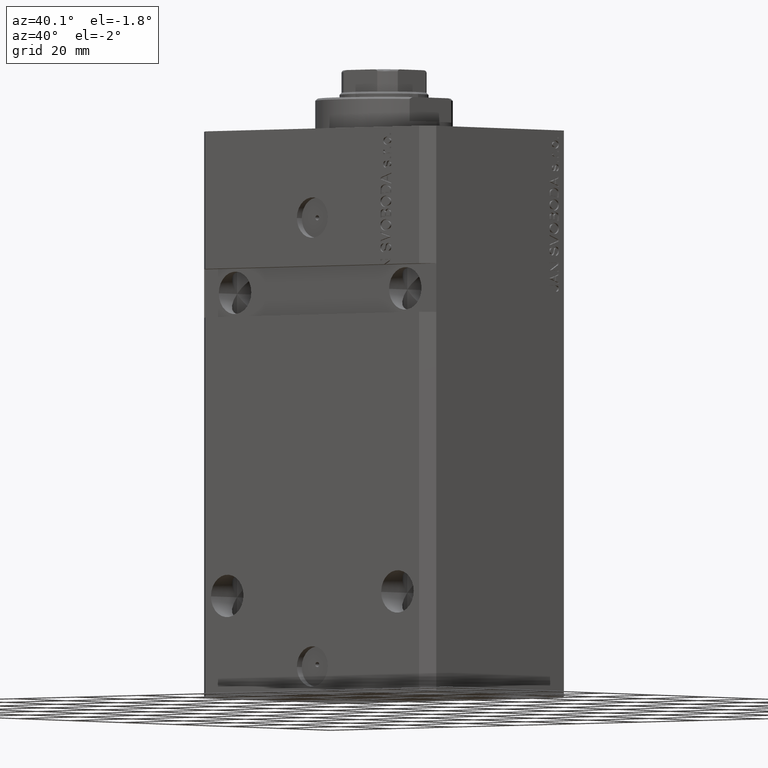
[diagram: clean part render]
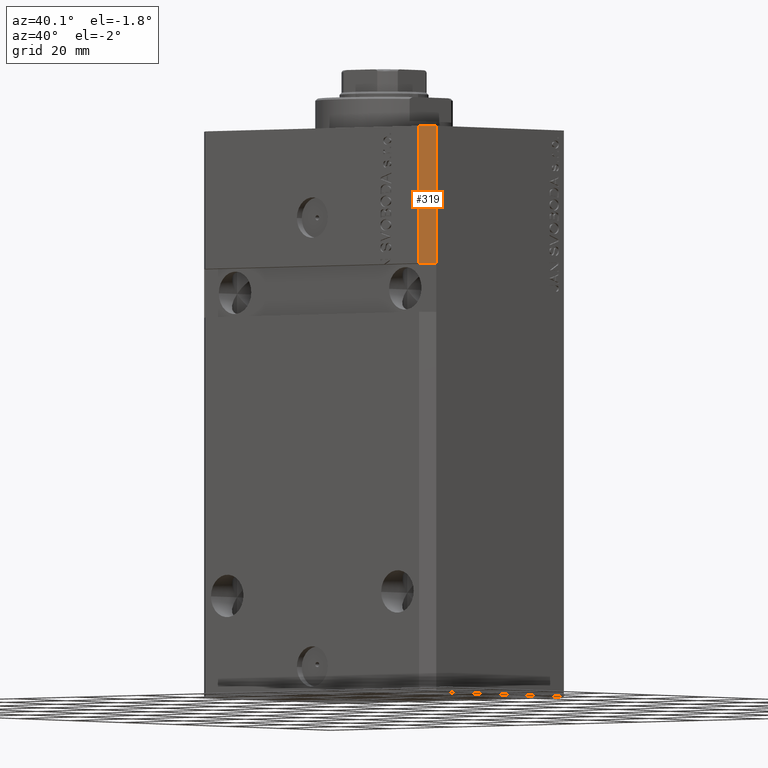
[diagram: same view with one face highlighted and labeled with its STEP entity id]
A machine part, auxiliary view. The second image highlights one B-rep face of the part: STEP entity #319.
In plain terms, the highlighted planar face has unit normal (0.7071, -0.7071, 0).
Its self-contained STEP definition (entity closure, byte-faithful):
#8 = LINE ( 'NONE', #26638, #39575 ) ;
#319 = ADVANCED_FACE ( 'NONE', ( #12850 ), #4960, .T. ) ;
#3857 = ORIENTED_EDGE ( 'NONE', *, *, #31316, .F. ) ;
#4960 = PLANE ( 'NONE',  #11954 ) ;
#5995 = VECTOR ( 'NONE', #27518, 1000.000000000000114 ) ;
#8615 = CARTESIAN_POINT ( 'NONE',  ( 34.49999999999999289, -27.49999999999999645, -140.0000000000000000 ) ) ;
#11954 = AXIS2_PLACEMENT_3D ( 'NONE', #22343, #43084, #15335 ) ;
#12850 = FACE_OUTER_BOUND ( 'NONE', #25553, .T. ) ;
#13306 = EDGE_CURVE ( 'NONE', #39475, #34709, #8, .T. ) ;
#13749 = LINE ( 'NONE', #34044, #5995 ) ;
#15164 = DIRECTION ( 'NONE',  ( 0.000000000000000000, 0.000000000000000000, 1.000000000000000000 ) ) ;
#15335 = DIRECTION ( 'NONE',  ( 0.7071067811865474617, 0.7071067811865474617, 0.000000000000000000 ) ) ;
#15405 = LINE ( 'NONE', #42933, #40997 ) ;
#15474 = EDGE_CURVE ( 'NONE', #39475, #39930, #15405, .T. ) ;
#20330 = CARTESIAN_POINT ( 'NONE',  ( 37.49999999999999289, -24.49999999999999289, -33.99999999999999289 ) ) ;
#20380 = VECTOR ( 'NONE', #15164, 1000.000000000000000 ) ;
#20541 = DIRECTION ( 'NONE',  ( 0.000000000000000000, 0.000000000000000000, 1.000000000000000000 ) ) ;
#22343 = CARTESIAN_POINT ( 'NONE',  ( 34.49999999999999289, -27.49999999999999645, -140.0000000000000000 ) ) ;
#22420 = DIRECTION ( 'NONE',  ( -0.7071067811865474617, -0.7071067811865474617, -6.542051911182397555E-17 ) ) ;
#25123 = LINE ( 'NONE', #8615, #20380 ) ;
#25553 = EDGE_LOOP ( 'NONE', ( #30127, #28182, #3857, #28694 ) ) ;
#26535 = EDGE_CURVE ( 'NONE', #39930, #40955, #25123, .T. ) ;
#26638 = CARTESIAN_POINT ( 'NONE',  ( 37.49999999999999289, -24.50000000000000000, -140.0000000000000000 ) ) ;
#27518 = DIRECTION ( 'NONE',  ( 0.7071067811865474617, 0.7071067811865474617, 0.000000000000000000 ) ) ;
#28182 = ORIENTED_EDGE ( 'NONE', *, *, #13306, .T. ) ;
#28333 = CARTESIAN_POINT ( 'NONE',  ( 34.49999999999999289, -27.49999999999999645, 0.000000000000000000 ) ) ;
#28694 = ORIENTED_EDGE ( 'NONE', *, *, #26535, .F. ) ;
#30127 = ORIENTED_EDGE ( 'NONE', *, *, #15474, .F. ) ;
#31316 = EDGE_CURVE ( 'NONE', #40955, #34709, #13749, .T. ) ;
#34044 = CARTESIAN_POINT ( 'NONE',  ( 34.49999999999999289, -27.49999999999999645, 0.000000000000000000 ) ) ;
#34709 = VERTEX_POINT ( 'NONE', #42608 ) ;
#36017 = CARTESIAN_POINT ( 'NONE',  ( 34.49999999999999289, -27.49999999999999289, -33.99999999999999289 ) ) ;
#39475 = VERTEX_POINT ( 'NONE', #20330 ) ;
#39575 = VECTOR ( 'NONE', #20541, 1000.000000000000000 ) ;
#39930 = VERTEX_POINT ( 'NONE', #36017 ) ;
#40955 = VERTEX_POINT ( 'NONE', #28333 ) ;
#40997 = VECTOR ( 'NONE', #22420, 1000.000000000000114 ) ;
#42608 = CARTESIAN_POINT ( 'NONE',  ( 37.49999999999999289, -24.50000000000000000, 0.000000000000000000 ) ) ;
#42933 = CARTESIAN_POINT ( 'NONE',  ( 34.49999999999998579, -27.50000000000000000, -34.00000000000000000 ) ) ;
#43084 = DIRECTION ( 'NONE',  ( 0.7071067811865475727, -0.7071067811865475727, 0.000000000000000000 ) ) ;